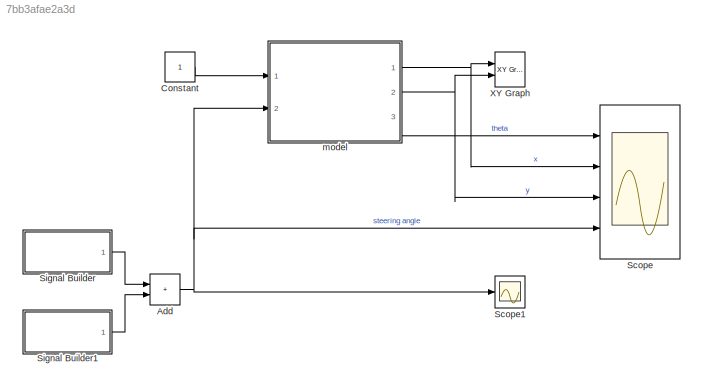
MODEL slx_7bb3afae2a3d
KIND model
CONFIG AbsTol = auto
CONFIG EnableMultiTasking = off
CONFIG FixedStep = 0.1
CONFIG MaxStep = auto
CONFIG MinStep = auto
CONFIG RelTol = 1e-3
CONFIG SampleTimeConstraint = Unconstrained
CONFIG Solver = ode4
CONFIG SolverName = ode4
CONFIG StartTime = 0.0
CONFIG StopTime = 10.0
BLOCK [Sum] Add
  IconShape = rectangular
  Ports = [2, 1]
BLOCK [Constant] Constant
BLOCK [Scope] Scope
  Floating = off
  NumInputPorts = 4
  Ports = [4]
  ScopeSpecificationString = Simulink.scopes.TimeScopeBlockCfg('CurrentConfiguration', extmgr.ConfigurationSet(extmgr.Configuration('Core','General UI',true),extmgr.Configuration('Core','Source UI',true),extmgr.Configuration('Sources','WiredSimulink',true),extmgr.Configuration('Visuals','Time Domain',true,'SerializedDisplays',{struct('MinYLimReal','-0.06829','MaxYLimReal','0.61459','YLabelReal','','MinYLimMag','0.00000','MaxY...<+3382ch>
BLOCK [Scope] Scope1
  Floating = off
  NumInputPorts = 1
  Ports = [1]
  ScopeSpecificationString = Simulink.scopes.TimeScopeBlockCfg('CurrentConfiguration', extmgr.ConfigurationSet(extmgr.Configuration('Core','General UI',true),extmgr.Configuration('Core','Source UI',true),extmgr.Configuration('Sources','WiredSimulink',true,'DataLoggingVariableName','ScopeData1'),extmgr.Configuration('Visuals','Time Domain',true,'SerializedDisplays',{struct('MinYLimReal','-0.625','MaxYLimReal','0.625','YLabelRe...<+1380ch>
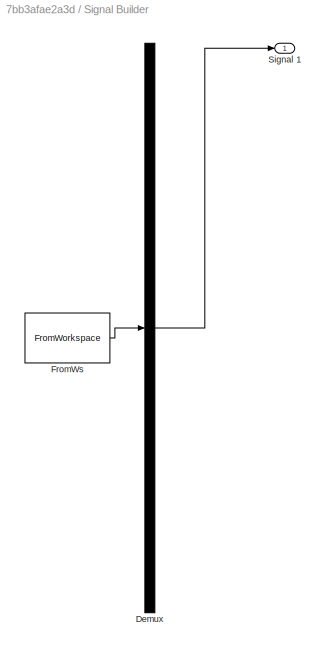
BLOCK [SubSystem] Signal Builder
  ClipboardFcn = sigbuilder_block('clipboard');
  CloseFcn = sigbuilder_block('close');
  ContinueFcn = sigbuilder_block('continue');
  CopyFcn = sigbuilder_block('copy');
  DeleteFcn = sigbuilder_block('delete');
  LoadFcn = sigbuilder_block('load');
  MaskHideContents = on
  ModelCloseFcn = sigbuilder_block('modelClose');
  NameChangeFcn = sigbuilder_block('namechange');
  OpenFcn = sigbuilder_block('open',[437.6 199.2 550.4 400 ]);
  PauseFcn = sigbuilder_block('pause');
  Ports = [0, 1]
  PreSaveFcn = sigbuilder_block('preSave');
  RequestExecContextInheritance = off
  StartFcn = sigbuilder_block('start');
  StopFcn = sigbuilder_block('stop');
  Tag = STV Subsys
BLOCK [Demux] Signal Builder/Demux
  DisplayOption = none
  Outputs = 1
  Ports = [1, 1]
  Tag = STV Demux
BLOCK [FromWorkspace] Signal Builder/FromWs
  Tag = STV FromWs
  VariableName = tuvar
BLOCK [Outport] Signal Builder/Signal 1
  Tag = STV Outport
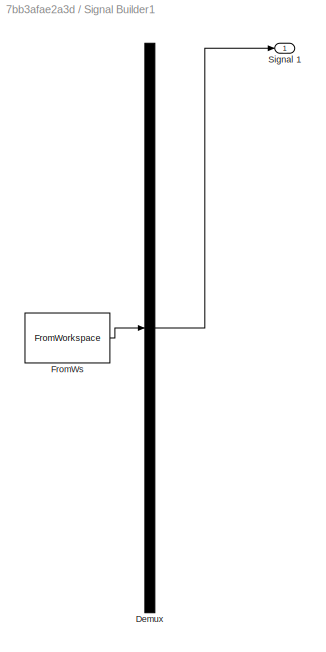
BLOCK [SubSystem] Signal Builder1
  ClipboardFcn = sigbuilder_block('clipboard');
  CloseFcn = sigbuilder_block('close');
  ContinueFcn = sigbuilder_block('continue');
  CopyFcn = sigbuilder_block('copy');
  DeleteFcn = sigbuilder_block('delete');
  LoadFcn = sigbuilder_block('load');
  MaskHideContents = on
  ModelCloseFcn = sigbuilder_block('modelClose');
  NameChangeFcn = sigbuilder_block('namechange');
  OpenFcn = sigbuilder_block('open',[437.6 199.2 550.4 400 ]);
  PauseFcn = sigbuilder_block('pause');
  Ports = [0, 1]
  PreSaveFcn = sigbuilder_block('preSave');
  RequestExecContextInheritance = off
  StartFcn = sigbuilder_block('start');
  StopFcn = sigbuilder_block('stop');
  Tag = STV Subsys
BLOCK [Demux] Signal Builder1/Demux
  DisplayOption = none
  Outputs = 1
  Ports = [1, 1]
  Tag = STV Demux
BLOCK [FromWorkspace] Signal Builder1/FromWs
  Tag = STV FromWs
  VariableName = tuvar
BLOCK [Outport] Signal Builder1/Signal 1
  Tag = STV Outport
BLOCK [Reference] XY Graph  REF=simulink/Sinks/XY Graph
  Ports = [2]
  SourceBlock = simulink/Sinks/XY Graph
  SourceProductBaseCode = SL
  SourceType = XY scope.
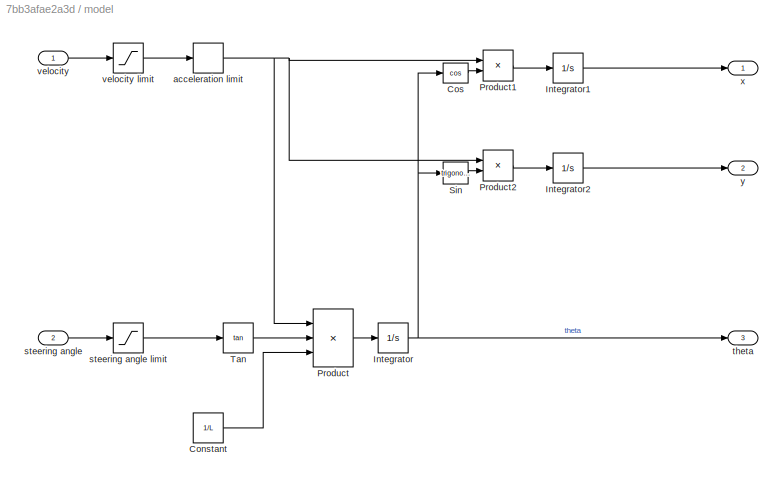
BLOCK [SubSystem] model
  Ports = [2, 3]
  RequestExecContextInheritance = off
BLOCK [Constant] model/Constant
  Value = 1/L
BLOCK [Trigonometry] model/Cos
  Operator = cos
  OutputSignalType = real
  Ports = [1, 1]
BLOCK [Integrator] model/Integrator
  Ports = [1, 1]
BLOCK [Integrator] model/Integrator1
  Ports = [1, 1]
BLOCK [Integrator] model/Integrator2
  Ports = [1, 1]
BLOCK [Product] model/Product
  Inputs = 3
  Ports = [3, 1]
BLOCK [Product] model/Product1
  Ports = [2, 1]
BLOCK [Product] model/Product2
  Ports = [2, 1]
BLOCK [Trigonometry] model/Sin
  OutputSignalType = real
  Ports = [1, 1]
BLOCK [Trigonometry] model/Tan
  Operator = tan
  Ports = [1, 1]
BLOCK [RateLimiter] model/acceleration limit
  SampleTimeMode = inherited
BLOCK [Inport] model/steering angle
  Port = 2
BLOCK [Saturate] model/steering angle limit
  LinearizeAsGain = off
  LowerLimit = -1
  UpperLimit = 1
BLOCK [Outport] model/theta
  Port = 3
BLOCK [Inport] model/velocity
BLOCK [Saturate] model/velocity limit
  LowerLimit = -2
  UpperLimit = 2
BLOCK [Outport] model/x
BLOCK [Outport] model/y
  Port = 2
NET Add:1 -> Scope1:1, Scope:4, model:2
LINE Constant:1 -> model:1
LINE Signal Builder1:1 -> Add:2
LINE Signal Builder:1 -> Add:1
LINE model/Constant:1 -> model/Product:3
LINE model/Cos:1 -> model/Product1:2
LINE model/Integrator1:1 -> model/x:1
LINE model/Integrator2:1 -> model/y:1
NET model/Integrator:1 -> model/Cos:1, model/Sin:1, model/theta:1
LINE model/Product1:1 -> model/Integrator1:1
LINE model/Product2:1 -> model/Integrator2:1
LINE model/Product:1 -> model/Integrator:1
LINE model/Sin:1 -> model/Product2:2
LINE model/Tan:1 -> model/Product:2
NET model/acceleration limit:1 -> model/Product1:1, model/Product2:1, model/Product:1
LINE model/steering angle limit:1 -> model/Tan:1
LINE model/steering angle:1 -> model/steering angle limit:1
LINE model/velocity limit:1 -> model/acceleration limit:1
LINE model/velocity:1 -> model/velocity limit:1
NET model:1 -> Scope:2, XY Graph:1
NET model:2 -> Scope:3, XY Graph:2
LINE model:3 -> Scope:1
note: NET lines group one-source signal fan-out (src -> all destinations, sorted); 1:1 wires keep LINE
